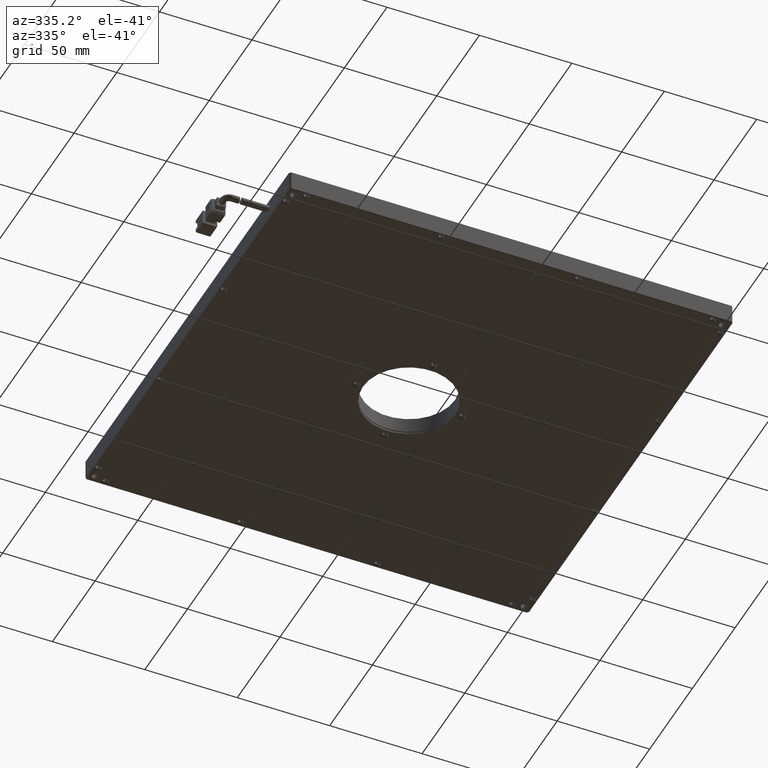
[diagram: clean part render]
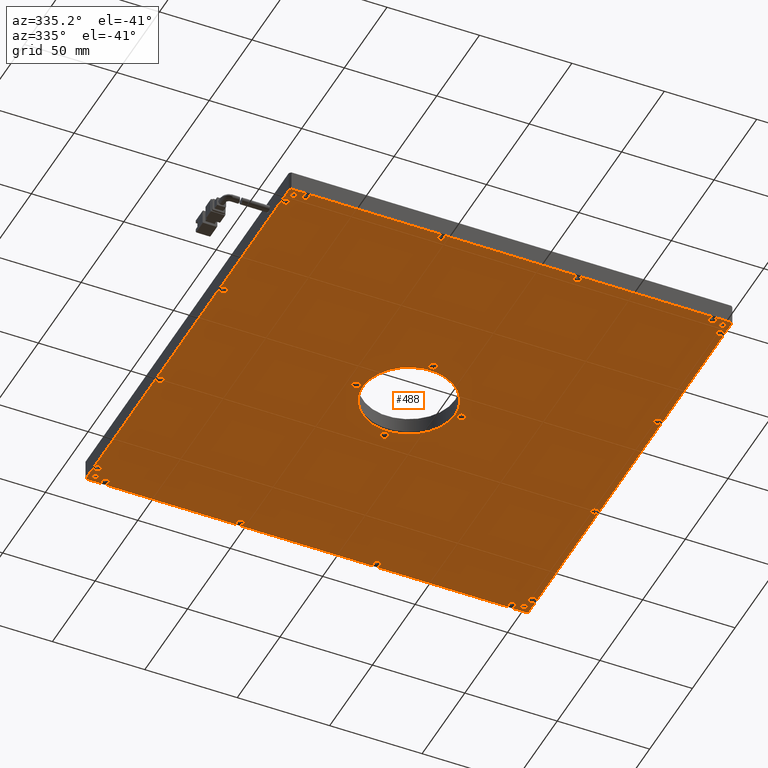
[diagram: same view with one face highlighted and labeled with its STEP entity id]
A machine part, auxiliary view. The second image highlights one B-rep face of the part: STEP entity #488.
In plain terms, the highlighted planar face has unit normal (0, 0, 1).
Its self-contained STEP definition (entity closure, byte-faithful):
#20 = CARTESIAN_POINT ( 'NONE',  ( 103.4453703703703800, -89.45796296301252000, -5.999999999929058500 ) ) ;
#33 = FACE_BOUND ( 'NONE', #13826, .T. ) ;
#67 = CARTESIAN_POINT ( 'NONE',  ( -51.05462962962992200, 134.0420370371026600, -6.000000000042745400 ) ) ;
#76 = CARTESIAN_POINT ( 'NONE',  ( -51.05462962962975800, -98.95796296296295200, -6.000000000042745400 ) ) ;
#153 = CARTESIAN_POINT ( 'NONE',  ( -131.5546296296299400, -18.45796296296279900, -6.000000000042745400 ) ) ;
#185 = CIRCLE ( 'NONE', #16923, 25.00000000000002100 ) ;
#219 = EDGE_CURVE ( 'NONE', #18613, #7248, #18902, .T. ) ;
#300 = DIRECTION ( 'NONE',  ( -1.000000000000000000, 0.0000000000000000000, 0.0000000000000000000 ) ) ;
#302 = LINE ( 'NONE', #7775, #19637 ) ;
#313 = FACE_BOUND ( 'NONE', #20107, .T. ) ;
#315 = AXIS2_PLACEMENT_3D ( 'NONE', #18181, #2802, #1114 ) ;
#325 = CARTESIAN_POINT ( 'NONE',  ( 100.1953703703703100, 134.5420370370373200, -6.000000000000000000 ) ) ;
#334 = DIRECTION ( 'NONE',  ( 0.0000000000000000000, 0.0000000000000000000, -1.000000000000000000 ) ) ;
#353 = EDGE_CURVE ( 'NONE', #2741, #15798, #9625, .T. ) ;
#385 = EDGE_LOOP ( 'NONE', ( #12186, #14098 ) ) ;
#397 = CIRCLE ( 'NONE', #13033, 2.000000000027340800 ) ;
#488 = ADVANCED_FACE ( 'NONE', ( #7473, #15957, #6935, #13823, #313, #15138, #18863, #18319, #7728, #21271, #5597, #3758, #12494, #33, #19119, #9062, #10667, #2702, #1125, #19651, #6132, #20191, #9332, #4801, #18576, #17260 ), #15563, .F. ) ;
#499 = DIRECTION ( 'NONE',  ( 0.0000000000000000000, -1.000000000000000000, 0.0000000000000000000 ) ) ;
#502 = ORIENTED_EDGE ( 'NONE', *, *, #15995, .F. ) ;
#531 = CARTESIAN_POINT ( 'NONE',  ( -39.05462962962982900, 18.54203703703719300, -5.999999999999999100 ) ) ;
#564 = CARTESIAN_POINT ( 'NONE',  ( -133.7546296296300200, -100.3336988942509700, -6.000000000000034600 ) ) ;
#595 = AXIS2_PLACEMENT_3D ( 'NONE', #9376, #2425, #16027 ) ;
#637 = CIRCLE ( 'NONE', #2841, 1.999999999950430300 ) ;
#693 = CARTESIAN_POINT ( 'NONE',  ( -128.3046296296300300, 134.5420370370374900, -6.000000000000000000 ) ) ;
#762 = CARTESIAN_POINT ( 'NONE',  ( -130.0546296296299400, -97.45796296296291000, -6.000000000000000000 ) ) ;
#800 = AXIS2_PLACEMENT_3D ( 'NONE', #10317, #1899, #10248 ) ;
#816 = VERTEX_POINT ( 'NONE', #3018 ) ;
#840 = EDGE_CURVE ( 'NONE', #9935, #7096, #5579, .T. ) ;
#849 = CARTESIAN_POINT ( 'NONE',  ( -132.9303655609180900, 138.2420370370373600, -5.999999999999914700 ) ) ;
#887 = DIRECTION ( 'NONE',  ( 0.0000000000000000000, 0.0000000000000000000, -1.000000000000000000 ) ) ;
#922 = CARTESIAN_POINT ( 'NONE',  ( 105.6453703703703200, -100.3336988942509900, -5.999999999999937800 ) ) ;
#943 = ORIENTED_EDGE ( 'NONE', *, *, #11579, .F. ) ;
#1039 = CARTESIAN_POINT ( 'NONE',  ( -131.5546296296299400, -91.45796296296288100, -6.000000000042745400 ) ) ;
#1041 = CARTESIAN_POINT ( 'NONE',  ( 105.6453703703703700, 138.5420370370373200, -5.999999999999999100 ) ) ;
#1059 = VERTEX_POINT ( 'NONE', #10425 ) ;
#1087 = DIRECTION ( 'NONE',  ( 0.0000000000000000000, 1.084202172543221200E-016, -1.000000000000000000 ) ) ;
#1114 = DIRECTION ( 'NONE',  ( -1.000000000000000000, 0.0000000000000000000, 0.0000000000000000000 ) ) ;
#1117 = CIRCLE ( 'NONE', #12520, 2.200000000020851900 ) ;
#1125 = FACE_BOUND ( 'NONE', #5131, .T. ) ;
#1328 = CARTESIAN_POINT ( 'NONE',  ( -131.5546296296300300, 128.5420370370374900, -6.000000000042745400 ) ) ;
#1343 = VERTEX_POINT ( 'NONE', #6682 ) ;
#1371 = DIRECTION ( 'NONE',  ( -1.000000000000000000, 0.0000000000000000000, 0.0000000000000000000 ) ) ;
#1431 = CARTESIAN_POINT ( 'NONE',  ( 95.94537037037037000, -98.95796296296299500, -5.999999999985901900 ) ) ;
#1507 = AXIS2_PLACEMENT_3D ( 'NONE', #17445, #3919, #499 ) ;
#1571 = EDGE_CURVE ( 'NONE', #8916, #5627, #9545, .T. ) ;
#1623 = CARTESIAN_POINT ( 'NONE',  ( -44.75462962958909000, 18.54203703703721800, -6.000000000030144800 ) ) ;
#1644 = CARTESIAN_POINT ( 'NONE',  ( -14.05462962962950100, -9.957962962962835000, -5.999999999985901900 ) ) ;
#1660 = DIRECTION ( 'NONE',  ( 0.0000000000000000000, 1.084202172543221200E-016, -1.000000000000000000 ) ) ;
#1693 = CARTESIAN_POINT ( 'NONE',  ( 105.6453703703703200, 137.4177729683253200, -5.999999999999988500 ) ) ;
#1732 = CARTESIAN_POINT ( 'NONE',  ( 101.9453703703703800, -97.45796296296299500, -6.000000000000000000 ) ) ;
#1774 = CARTESIAN_POINT ( 'NONE',  ( -14.05462962962991600, 47.04203703703724700, -5.999999999985901900 ) ) ;
#1792 = CIRCLE ( 'NONE', #19094, 2.200000000016189000 ) ;
#1795 = CIRCLE ( 'NONE', #315, 2.000000000007232000 ) ;
#1828 = CARTESIAN_POINT ( 'NONE',  ( -51.05462962962992200, 136.0420370370373200, -6.000000000042745400 ) ) ;
#1868 = ORIENTED_EDGE ( 'NONE', *, *, #5599, .F. ) ;
#1888 = ORIENTED_EDGE ( 'NONE', *, *, #17180, .F. ) ;
#1899 = DIRECTION ( 'NONE',  ( 0.0000000000000000000, 0.0000000000000000000, -1.000000000000000000 ) ) ;
#1914 = CARTESIAN_POINT ( 'NONE',  ( -51.05462962962992200, 136.0420370370373200, -6.000000000042745400 ) ) ;
#1983 = AXIS2_PLACEMENT_3D ( 'NONE', #1774, #13519, #7494 ) ;
#2074 = CIRCLE ( 'NONE', #10865, 2.000000000000376600 ) ;
#2132 = EDGE_CURVE ( 'NONE', #15798, #2741, #16364, .T. ) ;
#2163 = CARTESIAN_POINT ( 'NONE',  ( 22.94537037037018500, 134.0420370370277700, -6.000000000016114200 ) ) ;
#2271 = CARTESIAN_POINT ( 'NONE',  ( -51.05462962962975800, -98.95796296296295200, -6.000000000042745400 ) ) ;
#2306 = ORIENTED_EDGE ( 'NONE', *, *, #2416, .F. ) ;
#2309 = VERTEX_POINT ( 'NONE', #9028 ) ;
#2317 = CARTESIAN_POINT ( 'NONE',  ( -124.0546296296300100, 136.0420370370373200, -6.000000000042745400 ) ) ;
#2367 = VERTEX_POINT ( 'NONE', #10750 ) ;
#2416 = EDGE_CURVE ( 'NONE', #21942, #19966, #7616, .T. ) ;
#2425 = DIRECTION ( 'NONE',  ( 0.0000000000000000000, 0.0000000000000000000, -1.000000000000000000 ) ) ;
#2427 = ORIENTED_EDGE ( 'NONE', *, *, #19443, .F. ) ;
#2441 = CARTESIAN_POINT ( 'NONE',  ( -124.0546296296300100, 136.0420370370373200, -6.000000000042745400 ) ) ;
#2455 = AXIS2_PLACEMENT_3D ( 'NONE', #7882, #21449, #14827 ) ;
#2463 = VERTEX_POINT ( 'NONE', #7529 ) ;
#2514 = EDGE_CURVE ( 'NONE', #8155, #10180, #5735, .T. ) ;
#2600 = VERTEX_POINT ( 'NONE', #17956 ) ;
#2639 = ORIENTED_EDGE ( 'NONE', *, *, #4496, .F. ) ;
#2644 = EDGE_CURVE ( 'NONE', #11174, #14848, #11820, .T. ) ;
#2676 = EDGE_LOOP ( 'NONE', ( #943, #21143, #4979, #3082, #1888, #10007, #17331, #11229 ) ) ;
#2680 = VERTEX_POINT ( 'NONE', #10040 ) ;
#2694 = CARTESIAN_POINT ( 'NONE',  ( 101.4453703703631100, -18.45796296296288500, -5.999999999985901900 ) ) ;
#2702 = FACE_BOUND ( 'NONE', #19192, .T. ) ;
#2716 = ORIENTED_EDGE ( 'NONE', *, *, #7203, .F. ) ;
#2741 = VERTEX_POINT ( 'NONE', #6837 ) ;
#2775 = CIRCLE ( 'NONE', #8203, 2.000000000027424300 ) ;
#2802 = DIRECTION ( 'NONE',  ( 0.0000000000000000000, 0.0000000000000000000, -1.000000000000000000 ) ) ;
#2841 = AXIS2_PLACEMENT_3D ( 'NONE', #11214, #8316, #11095 ) ;
#2922 = AXIS2_PLACEMENT_3D ( 'NONE', #153, #20458, #19020 ) ;
#3018 = CARTESIAN_POINT ( 'NONE',  ( -128.3046296296299400, -97.45796296296291000, -6.000000000000000000 ) ) ;
#3037 = ORIENTED_EDGE ( 'NONE', *, *, #8184, .F. ) ;
#3065 = DIRECTION ( 'NONE',  ( 0.0000000000000000000, -1.000000000000000000, 0.0000000000000000000 ) ) ;
#3082 = ORIENTED_EDGE ( 'NONE', *, *, #17721, .F. ) ;
#3115 = CIRCLE ( 'NONE', #21677, 25.00000000000002100 ) ;
#3118 = EDGE_CURVE ( 'NONE', #18591, #20547, #7818, .T. ) ;
#3122 = DIRECTION ( 'NONE',  ( 0.0000000000000000000, -1.000000000000000000, 0.0000000000000000000 ) ) ;
#3159 = CIRCLE ( 'NONE', #12307, 1.999999999950388600 ) ;
#3225 = VERTEX_POINT ( 'NONE', #19726 ) ;
#3258 = ORIENTED_EDGE ( 'NONE', *, *, #12553, .F. ) ;
#3278 = CIRCLE ( 'NONE', #1507, 2.000000000020513400 ) ;
#3307 = CARTESIAN_POINT ( 'NONE',  ( 104.8211063016584300, -101.1579629629629700, -5.999999999999974200 ) ) ;
#3315 = AXIS2_PLACEMENT_3D ( 'NONE', #76, #13548, #16711 ) ;
#3345 = DIRECTION ( 'NONE',  ( 0.0000000000000000000, -1.000000000000000000, 0.0000000000000000000 ) ) ;
#3401 = DIRECTION ( 'NONE',  ( 7.052966104740302100E-032, 1.084202172470637700E-016, -1.000000000000000000 ) ) ;
#3442 = DIRECTION ( 'NONE',  ( -1.000000000000000000, 0.0000000000000000000, 0.0000000000000000000 ) ) ;
#3448 = CIRCLE ( 'NONE', #2922, 2.000000000020596400 ) ;
#3464 = VERTEX_POINT ( 'NONE', #10430 ) ;
#3479 = DIRECTION ( 'NONE',  ( -0.0000000000000000000, -0.0000000000000000000, -1.000000000000000000 ) ) ;
#3486 = VERTEX_POINT ( 'NONE', #5084 ) ;
#3531 = EDGE_CURVE ( 'NONE', #4529, #3559, #637, .T. ) ;
#3559 = VERTEX_POINT ( 'NONE', #8973 ) ;
#3570 = DIRECTION ( 'NONE',  ( 0.0000000000000000000, 0.0000000000000000000, -1.000000000000000000 ) ) ;
#3623 = CARTESIAN_POINT ( 'NONE',  ( -133.7546296296299300, -100.3336988942509200, -5.999999999999999100 ) ) ;
#3711 = CARTESIAN_POINT ( 'NONE',  ( 22.94537037037018500, 136.0420370370373200, -6.000000000016114200 ) ) ;
#3714 = DIRECTION ( 'NONE',  ( 0.0000000000000000000, 1.084202172474339100E-016, -1.000000000000000000 ) ) ;
#3758 = FACE_BOUND ( 'NONE', #21742, .T. ) ;
#3814 = ORIENTED_EDGE ( 'NONE', *, *, #12352, .F. ) ;
#3872 = DIRECTION ( 'NONE',  ( 1.000000000000000000, 0.0000000000000000000, 0.0000000000000000000 ) ) ;
#3903 = AXIS2_PLACEMENT_3D ( 'NONE', #8794, #13899, #15603 ) ;
#3919 = DIRECTION ( 'NONE',  ( 0.0000000000000000000, 1.084202172474384200E-016, -1.000000000000000000 ) ) ;
#3923 = CARTESIAN_POINT ( 'NONE',  ( 22.94537037037018500, 138.0420370370468700, -6.000000000016114200 ) ) ;
#3930 = CARTESIAN_POINT ( 'NONE',  ( -132.9303655609180300, 138.2420370370374800, -5.999999999999999100 ) ) ;
#4014 = CARTESIAN_POINT ( 'NONE',  ( -124.0546296296300100, 138.0420370370646600, -6.000000000042745400 ) ) ;
#4085 = DIRECTION ( 'NONE',  ( 0.0000000000000000000, 1.084202172465898200E-016, -1.000000000000000000 ) ) ;
#4126 = EDGE_CURVE ( 'NONE', #2600, #5795, #13948, .T. ) ;
#4135 = CARTESIAN_POINT ( 'NONE',  ( 95.94537037037037000, -98.95796296296299500, -5.999999999985901900 ) ) ;
#4157 = DIRECTION ( 'NONE',  ( 0.0000000000000000000, 0.0000000000000000000, -1.000000000000000000 ) ) ;
#4163 = DIRECTION ( 'NONE',  ( 0.0000000000000000000, -1.000000000000000000, 0.0000000000000000000 ) ) ;
#4194 = ORIENTED_EDGE ( 'NONE', *, *, #2132, .F. ) ;
#4302 = EDGE_LOOP ( 'NONE', ( #15633, #10788 ) ) ;
#4305 = EDGE_LOOP ( 'NONE', ( #11524, #7522 ) ) ;
#4392 = EDGE_CURVE ( 'NONE', #4725, #20127, #8063, .T. ) ;
#4463 = EDGE_CURVE ( 'NONE', #14848, #11174, #12301, .T. ) ;
#4476 = DIRECTION ( 'NONE',  ( 0.0000000000000000000, 1.084202172474339100E-016, -1.000000000000000000 ) ) ;
#4496 = EDGE_CURVE ( 'NONE', #5795, #2600, #18917, .T. ) ;
#4515 = EDGE_CURVE ( 'NONE', #2309, #12538, #13080, .T. ) ;
#4529 = VERTEX_POINT ( 'NONE', #20 ) ;
#4549 = ORIENTED_EDGE ( 'NONE', *, *, #16992, .F. ) ;
#4583 = EDGE_CURVE ( 'NONE', #13890, #2680, #17300, .T. ) ;
#4725 = VERTEX_POINT ( 'NONE', #8373 ) ;
#4750 = VERTEX_POINT ( 'NONE', #15826 ) ;
#4755 = CARTESIAN_POINT ( 'NONE',  ( 103.4453703703703000, 128.5420370370373200, -5.999999999985901900 ) ) ;
#4801 = FACE_BOUND ( 'NONE', #13296, .T. ) ;
#4829 = CIRCLE ( 'NONE', #18525, 1.749999999999987600 ) ;
#4848 = ORIENTED_EDGE ( 'NONE', *, *, #17620, .F. ) ;
#4852 = VERTEX_POINT ( 'NONE', #564 ) ;
#4913 = DIRECTION ( 'NONE',  ( 1.000000000000000000, 0.0000000000000000000, 0.0000000000000000000 ) ) ;
#4979 = ORIENTED_EDGE ( 'NONE', *, *, #10339, .F. ) ;
#5005 = CARTESIAN_POINT ( 'NONE',  ( -42.55462962962974400, 18.54203703703721800, -6.000000000030144800 ) ) ;
#5030 = VECTOR ( 'NONE', #11167, 1000.000000000000000 ) ;
#5051 = CARTESIAN_POINT ( 'NONE',  ( 95.94537037037031300, 136.0420370370373200, -5.999999999985901900 ) ) ;
#5066 = CARTESIAN_POINT ( 'NONE',  ( 105.6453703703703000, 137.4177729683253500, -5.999999999999999100 ) ) ;
#5080 = DIRECTION ( 'NONE',  ( 0.0000000000000000000, -1.000000000000000000, 0.0000000000000000000 ) ) ;
#5084 = CARTESIAN_POINT ( 'NONE',  ( -14.05462962962950100, -7.757962962941983100, -5.999999999985901900 ) ) ;
#5131 = EDGE_LOOP ( 'NONE', ( #502, #13252 ) ) ;
#5178 = DIRECTION ( 'NONE',  ( 0.0000000000000000000, -1.000000000000000000, 0.0000000000000000000 ) ) ;
#5256 = DIRECTION ( 'NONE',  ( 0.0000000000000000000, 0.0000000000000000000, -1.000000000000000000 ) ) ;
#5264 = CARTESIAN_POINT ( 'NONE',  ( 101.9453703703703800, -97.45796296296299500, -6.000000000000000000 ) ) ;
#5353 = DIRECTION ( 'NONE',  ( 0.0000000000000000000, -1.000000000000000000, 0.0000000000000000000 ) ) ;
#5443 = VERTEX_POINT ( 'NONE', #693 ) ;
#5483 = CIRCLE ( 'NONE', #10576, 2.000000000020596400 ) ;
#5518 = DIRECTION ( 'NONE',  ( 0.0000000000000000000, 1.084202172543191000E-016, -1.000000000000000000 ) ) ;
#5553 = CARTESIAN_POINT ( 'NONE',  ( -14.05462962962980600, 18.54203703703719000, -5.999999999999999100 ) ) ;
#5579 = LINE ( 'NONE', #1041, #5030 ) ;
#5597 = FACE_BOUND ( 'NONE', #17691, .T. ) ;
#5599 = EDGE_CURVE ( 'NONE', #13317, #3486, #15659, .T. ) ;
#5600 = ORIENTED_EDGE ( 'NONE', *, *, #6998, .F. ) ;
#5627 = VERTEX_POINT ( 'NONE', #13473 ) ;
#5647 = EDGE_LOOP ( 'NONE', ( #3258, #2306 ) ) ;
#5735 = CIRCLE ( 'NONE', #19827, 2.000000000020513400 ) ;
#5795 = VERTEX_POINT ( 'NONE', #67 ) ;
#5903 = DIRECTION ( 'NONE',  ( 0.0000000000000000000, 1.084202172470682700E-016, -1.000000000000000000 ) ) ;
#5995 = CIRCLE ( 'NONE', #12671, 2.200000000016189000 ) ;
#6132 = FACE_BOUND ( 'NONE', #385, .T. ) ;
#6134 = VERTEX_POINT ( 'NONE', #13868 ) ;
#6180 = ORIENTED_EDGE ( 'NONE', *, *, #6601, .F. ) ;
#6213 = CIRCLE ( 'NONE', #19589, 2.000000000020596400 ) ;
#6236 = EDGE_CURVE ( 'NONE', #18300, #1059, #7101, .T. ) ;
#6240 = CARTESIAN_POINT ( 'NONE',  ( 101.4453703703631100, 128.5420370370373200, -5.999999999985901900 ) ) ;
#6403 = AXIS2_PLACEMENT_3D ( 'NONE', #18067, #18364, #9941 ) ;
#6461 = EDGE_CURVE ( 'NONE', #5443, #17082, #11587, .T. ) ;
#6536 = DIRECTION ( 'NONE',  ( 0.0000000000000000000, 0.0000000000000000000, -1.000000000000000000 ) ) ;
#6601 = EDGE_CURVE ( 'NONE', #816, #16690, #16053, .T. ) ;
#6682 = CARTESIAN_POINT ( 'NONE',  ( -133.7546296296299600, 137.4177729683254700, -5.999999999999941400 ) ) ;
#6711 = LINE ( 'NONE', #16494, #14948 ) ;
#6724 = CARTESIAN_POINT ( 'NONE',  ( 22.94537037037027000, -98.95796296296295200, -6.000000000016030700 ) ) ;
#6727 = DIRECTION ( 'NONE',  ( 0.0000000000000000000, 9.856383385883771500E-017, -1.000000000000000000 ) ) ;
#6739 = CARTESIAN_POINT ( 'NONE',  ( 100.1953703703704000, -97.45796296296299500, -6.000000000000000000 ) ) ;
#6785 = AXIS2_PLACEMENT_3D ( 'NONE', #13057, #9795, #3065 ) ;
#6837 = CARTESIAN_POINT ( 'NONE',  ( -40.35462962967039900, 18.54203703703721800, -6.000000000030144800 ) ) ;
#6935 = FACE_BOUND ( 'NONE', #4302, .T. ) ;
#6989 = CIRCLE ( 'NONE', #9985, 1.750000000000001600 ) ;
#6998 = EDGE_CURVE ( 'NONE', #3225, #8278, #10894, .T. ) ;
#7096 = VERTEX_POINT ( 'NONE', #1693 ) ;
#7101 = CIRCLE ( 'NONE', #8217, 1.999999999934831700 ) ;
#7104 = DIRECTION ( 'NONE',  ( 0.0000000000000000000, 1.084202172465898200E-016, -1.000000000000000000 ) ) ;
#7138 = AXIS2_PLACEMENT_3D ( 'NONE', #13596, #19067, #18704 ) ;
#7203 = EDGE_CURVE ( 'NONE', #17082, #5443, #18017, .T. ) ;
#7214 = EDGE_LOOP ( 'NONE', ( #15134, #12518 ) ) ;
#7215 = CARTESIAN_POINT ( 'NONE',  ( 103.4453703703703800, -91.45796296296295200, -5.999999999929058500 ) ) ;
#7248 = VERTEX_POINT ( 'NONE', #849 ) ;
#7395 = CARTESIAN_POINT ( 'NONE',  ( -14.05462962962980600, 18.54203703703719000, -5.999999999999999100 ) ) ;
#7473 = FACE_BOUND ( 'NONE', #20002, .T. ) ;
#7476 = CARTESIAN_POINT ( 'NONE',  ( 22.94537037037018500, 136.0420370370373200, -6.000000000016114200 ) ) ;
#7494 = DIRECTION ( 'NONE',  ( 0.0000000000000000000, -1.000000000000000000, 0.0000000000000000000 ) ) ;
#7511 = CARTESIAN_POINT ( 'NONE',  ( -133.7546296296300200, 138.5420370370373200, -5.999999999999999100 ) ) ;
#7522 = ORIENTED_EDGE ( 'NONE', *, *, #12210, .F. ) ;
#7529 = CARTESIAN_POINT ( 'NONE',  ( 103.4453703703703400, 57.54203703698753000, -5.999999999929058500 ) ) ;
#7540 = DIRECTION ( 'NONE',  ( -0.7071067811865713300, -0.7071067811865237000, 0.0000000000000000000 ) ) ;
#7557 = DIRECTION ( 'NONE',  ( -1.000000000000000000, 0.0000000000000000000, 0.0000000000000000000 ) ) ;
#7616 = CIRCLE ( 'NONE', #15585, 2.000000000000445900 ) ;
#7631 = AXIS2_PLACEMENT_3D ( 'NONE', #4755, #6536, #15133 ) ;
#7643 = ORIENTED_EDGE ( 'NONE', *, *, #18462, .F. ) ;
#7653 = CARTESIAN_POINT ( 'NONE',  ( -124.0546296296299300, -96.95796296293549700, -6.000000000042745400 ) ) ;
#7699 = VERTEX_POINT ( 'NONE', #15546 ) ;
#7728 = FACE_BOUND ( 'NONE', #15918, .T. ) ;
#7756 = ORIENTED_EDGE ( 'NONE', *, *, #4392, .F. ) ;
#7775 = CARTESIAN_POINT ( 'NONE',  ( 104.8211063016584200, -101.1579629629630100, -5.999999999999999100 ) ) ;
#7818 = CIRCLE ( 'NONE', #6785, 2.000000000009549700 ) ;
#7822 = EDGE_LOOP ( 'NONE', ( #13041, #16225 ) ) ;
#7853 = CIRCLE ( 'NONE', #10846, 1.999999999950430300 ) ;
#7882 = CARTESIAN_POINT ( 'NONE',  ( 101.9453703703703000, 134.5420370370373200, -6.000000000000000000 ) ) ;
#8015 = CIRCLE ( 'NONE', #11179, 2.000000000009549700 ) ;
#8021 = EDGE_CURVE ( 'NONE', #8615, #17747, #1795, .T. ) ;
#8063 = CIRCLE ( 'NONE', #15258, 1.749999999999987600 ) ;
#8071 = ORIENTED_EDGE ( 'NONE', *, *, #2514, .F. ) ;
#8074 = CARTESIAN_POINT ( 'NONE',  ( -51.05462962962975800, -96.95796296302812300, -6.000000000042745400 ) ) ;
#8077 = CARTESIAN_POINT ( 'NONE',  ( -130.0546296296300300, 134.5420370370374900, -6.000000000000000000 ) ) ;
#8155 = VERTEX_POINT ( 'NONE', #12189 ) ;
#8184 = EDGE_CURVE ( 'NONE', #3559, #4529, #7853, .T. ) ;
#8203 = AXIS2_PLACEMENT_3D ( 'NONE', #20147, #20379, #18647 ) ;
#8204 = EDGE_CURVE ( 'NONE', #10062, #7699, #5995, .T. ) ;
#8217 = AXIS2_PLACEMENT_3D ( 'NONE', #2271, #9351, #4163 ) ;
#8278 = VERTEX_POINT ( 'NONE', #14331 ) ;
#8303 = CIRCLE ( 'NONE', #3903, 2.000000000007232000 ) ;
#8316 = DIRECTION ( 'NONE',  ( 0.0000000000000000000, 1.084202172543191000E-016, -1.000000000000000000 ) ) ;
#8373 = CARTESIAN_POINT ( 'NONE',  ( 103.6953703703702800, 134.5420370370373200, -6.000000000000000000 ) ) ;
#8491 = CARTESIAN_POINT ( 'NONE',  ( -14.05462962962950100, -12.15796296298368700, -5.999999999985901900 ) ) ;
#8574 = DIRECTION ( 'NONE',  ( 0.0000000000000000000, 1.084202172520922600E-016, -1.000000000000000000 ) ) ;
#8615 = VERTEX_POINT ( 'NONE', #11423 ) ;
#8651 = VECTOR ( 'NONE', #10359, 1000.000000000000100 ) ;
#8753 = CARTESIAN_POINT ( 'NONE',  ( -131.5546296296299400, -91.45796296296288100, -6.000000000042745400 ) ) ;
#8794 = CARTESIAN_POINT ( 'NONE',  ( 103.4453703703703400, -18.45796296296288500, -5.999999999985901900 ) ) ;
#8827 = ORIENTED_EDGE ( 'NONE', *, *, #19699, .F. ) ;
#8837 = AXIS2_PLACEMENT_3D ( 'NONE', #18473, #16753, #11744 ) ;
#8881 = AXIS2_PLACEMENT_3D ( 'NONE', #1914, #8574, #10335 ) ;
#8916 = VERTEX_POINT ( 'NONE', #4014 ) ;
#8973 = CARTESIAN_POINT ( 'NONE',  ( 103.4453703703703800, -93.45796296291338500, -5.999999999929058500 ) ) ;
#9003 = EDGE_CURVE ( 'NONE', #16690, #816, #6989, .T. ) ;
#9027 = EDGE_CURVE ( 'NONE', #9136, #19089, #6711, .T. ) ;
#9028 = CARTESIAN_POINT ( 'NONE',  ( -131.5546296296300300, 53.54203703701679000, -6.000000000042745400 ) ) ;
#9062 = FACE_BOUND ( 'NONE', #14005, .T. ) ;
#9136 = VERTEX_POINT ( 'NONE', #9419 ) ;
#9198 = CARTESIAN_POINT ( 'NONE',  ( 105.9453703703703000, 138.5420370370373200, -5.999999999999999100 ) ) ;
#9332 = FACE_OUTER_BOUND ( 'NONE', #2676, .T. ) ;
#9342 = DIRECTION ( 'NONE',  ( 0.0000000000000000000, 0.0000000000000000000, 1.000000000000000000 ) ) ;
#9351 = DIRECTION ( 'NONE',  ( 7.052966105393354200E-032, 1.084202172520832200E-016, -1.000000000000000000 ) ) ;
#9376 = CARTESIAN_POINT ( 'NONE',  ( 95.94537037037031300, 136.0420370370373200, -5.999999999985901900 ) ) ;
#9419 = CARTESIAN_POINT ( 'NONE',  ( -132.9303655609179800, -101.1579629629629600, -6.000000000000007100 ) ) ;
#9449 = EDGE_CURVE ( 'NONE', #12538, #2309, #3278, .T. ) ;
#9529 = ORIENTED_EDGE ( 'NONE', *, *, #4126, .F. ) ;
#9545 = CIRCLE ( 'NONE', #20220, 2.000000000027340800 ) ;
#9588 = DIRECTION ( 'NONE',  ( 0.0000000000000000000, 1.084202172470682700E-016, -1.000000000000000000 ) ) ;
#9591 = ORIENTED_EDGE ( 'NONE', *, *, #20137, .F. ) ;
#9625 = CIRCLE ( 'NONE', #18608, 2.199999999959345600 ) ;
#9673 = AXIS2_PLACEMENT_3D ( 'NONE', #15161, #3401, #5080 ) ;
#9702 = EDGE_CURVE ( 'NONE', #7096, #18613, #15272, .T. ) ;
#9711 = DIRECTION ( 'NONE',  ( -1.000000000000000000, 0.0000000000000000000, 0.0000000000000000000 ) ) ;
#9733 = VERTEX_POINT ( 'NONE', #19754 ) ;
#9795 = DIRECTION ( 'NONE',  ( 2.350988701559318300E-032, 1.084202172465845800E-016, -1.000000000000000000 ) ) ;
#9807 = CARTESIAN_POINT ( 'NONE',  ( 101.9453703703703000, 134.5420370370373200, -6.000000000000000000 ) ) ;
#9884 = DIRECTION ( 'NONE',  ( 0.0000000000000000000, 0.0000000000000000000, -1.000000000000000000 ) ) ;
#9888 = CIRCLE ( 'NONE', #16272, 2.000000000009549700 ) ;
#9912 = ORIENTED_EDGE ( 'NONE', *, *, #3118, .F. ) ;
#9931 = DIRECTION ( 'NONE',  ( 0.0000000000000000000, 0.0000000000000000000, -1.000000000000000000 ) ) ;
#9935 = VERTEX_POINT ( 'NONE', #922 ) ;
#9941 = DIRECTION ( 'NONE',  ( 0.0000000000000000000, -1.000000000000000000, 0.0000000000000000000 ) ) ;
#9985 = AXIS2_PLACEMENT_3D ( 'NONE', #762, #4157, #7557 ) ;
#10007 = ORIENTED_EDGE ( 'NONE', *, *, #219, .F. ) ;
#10018 = CIRCLE ( 'NONE', #1983, 2.200000000020435400 ) ;
#10040 = CARTESIAN_POINT ( 'NONE',  ( 103.6953703703703700, -97.45796296296299500, -6.000000000000000000 ) ) ;
#10062 = VERTEX_POINT ( 'NONE', #11545 ) ;
#10142 = DIRECTION ( 'NONE',  ( -1.000000000000000000, 0.0000000000000000000, 0.0000000000000000000 ) ) ;
#10179 = DIRECTION ( 'NONE',  ( 0.0000000000000000000, 1.084202172520922600E-016, -1.000000000000000000 ) ) ;
#10180 = VERTEX_POINT ( 'NONE', #16925 ) ;
#10248 = DIRECTION ( 'NONE',  ( -1.000000000000000000, 0.0000000000000000000, 0.0000000000000000000 ) ) ;
#10262 = DIRECTION ( 'NONE',  ( -1.000000000000000000, 0.0000000000000000000, 0.0000000000000000000 ) ) ;
#10292 = DIRECTION ( 'NONE',  ( -1.000000000000000000, 0.0000000000000000000, 0.0000000000000000000 ) ) ;
#10310 = VECTOR ( 'NONE', #7540, 1000.000000000000000 ) ;
#10317 = CARTESIAN_POINT ( 'NONE',  ( 103.4453703703703000, 128.5420370370373200, -5.999999999985901900 ) ) ;
#10335 = DIRECTION ( 'NONE',  ( 0.0000000000000000000, -1.000000000000000000, 0.0000000000000000000 ) ) ;
#10339 = EDGE_CURVE ( 'NONE', #4852, #9136, #13135, .T. ) ;
#10347 = DIRECTION ( 'NONE',  ( 0.0000000000000000000, 1.084202172474339100E-016, -1.000000000000000000 ) ) ;
#10359 = DIRECTION ( 'NONE',  ( 0.7071067811865474600, -0.7071067811865474600, -0.0000000000000000000 ) ) ;
#10386 = VERTEX_POINT ( 'NONE', #2163 ) ;
#10391 = VERTEX_POINT ( 'NONE', #13991 ) ;
#10408 = VERTEX_POINT ( 'NONE', #3923 ) ;
#10425 = CARTESIAN_POINT ( 'NONE',  ( -51.05462962962975800, -100.9579629628977800, -6.000000000042745400 ) ) ;
#10430 = CARTESIAN_POINT ( 'NONE',  ( -14.05462962962991600, 44.84203703701680900, -5.999999999985901900 ) ) ;
#10478 = CARTESIAN_POINT ( 'NONE',  ( -131.5546296296300300, 55.54203703703730400, -6.000000000042745400 ) ) ;
#10559 = AXIS2_PLACEMENT_3D ( 'NONE', #9198, #9342, #12658 ) ;
#10576 = AXIS2_PLACEMENT_3D ( 'NONE', #8753, #3714, #15335 ) ;
#10587 = ORIENTED_EDGE ( 'NONE', *, *, #18422, .F. ) ;
#10667 = FACE_BOUND ( 'NONE', #5647, .T. ) ;
#10750 = CARTESIAN_POINT ( 'NONE',  ( -14.05462962962991600, 49.24203703705767800, -5.999999999985901900 ) ) ;
#10788 = ORIENTED_EDGE ( 'NONE', *, *, #21440, .F. ) ;
#10804 = VECTOR ( 'NONE', #18706, 1000.000000000000000 ) ;
#10839 = EDGE_LOOP ( 'NONE', ( #4194, #19021 ) ) ;
#10846 = AXIS2_PLACEMENT_3D ( 'NONE', #7215, #5518, #17357 ) ;
#10865 = AXIS2_PLACEMENT_3D ( 'NONE', #5051, #20416, #3442 ) ;
#10894 = CIRCLE ( 'NONE', #14897, 2.000000000020596400 ) ;
#11095 = DIRECTION ( 'NONE',  ( 0.0000000000000000000, -1.000000000000000000, 0.0000000000000000000 ) ) ;
#11167 = DIRECTION ( 'NONE',  ( 0.0000000000000000000, 1.000000000000000000, 0.0000000000000000000 ) ) ;
#11170 = EDGE_CURVE ( 'NONE', #9733, #2463, #17012, .T. ) ;
#11171 = CIRCLE ( 'NONE', #3315, 1.999999999934831700 ) ;
#11174 = VERTEX_POINT ( 'NONE', #6240 ) ;
#11179 = AXIS2_PLACEMENT_3D ( 'NONE', #7476, #4085, #15921 ) ;
#11214 = CARTESIAN_POINT ( 'NONE',  ( 103.4453703703703800, -91.45796296296295200, -5.999999999929058500 ) ) ;
#11219 = CARTESIAN_POINT ( 'NONE',  ( 103.4453703703703400, 55.54203703703714000, -5.999999999929058500 ) ) ;
#11229 = ORIENTED_EDGE ( 'NONE', *, *, #840, .F. ) ;
#11337 = CARTESIAN_POINT ( 'NONE',  ( -131.5546296296300300, 57.54203703705781700, -6.000000000042745400 ) ) ;
#11423 = CARTESIAN_POINT ( 'NONE',  ( 105.4453703703775700, -18.45796296296288500, -5.999999999985901900 ) ) ;
#11440 = CARTESIAN_POINT ( 'NONE',  ( -124.0546296296299300, -100.9579629629903400, -6.000000000042745400 ) ) ;
#11506 = DIRECTION ( 'NONE',  ( 0.0000000000000000000, -1.000000000000000000, 0.0000000000000000000 ) ) ;
#11524 = ORIENTED_EDGE ( 'NONE', *, *, #11170, .F. ) ;
#11545 = CARTESIAN_POINT ( 'NONE',  ( 12.24537037035403100, 18.54203703703720400, -5.999999999932860800 ) ) ;
#11579 = EDGE_CURVE ( 'NONE', #19089, #9935, #302, .T. ) ;
#11587 = CIRCLE ( 'NONE', #12047, 1.750000000000001600 ) ;
#11744 = DIRECTION ( 'NONE',  ( 0.0000000000000000000, -1.000000000000000000, 0.0000000000000000000 ) ) ;
#11754 = ORIENTED_EDGE ( 'NONE', *, *, #4515, .F. ) ;
#11820 = CIRCLE ( 'NONE', #7631, 2.000000000007190700 ) ;
#12043 = CARTESIAN_POINT ( 'NONE',  ( 14.44537037037022000, 18.54203703703720400, -5.999999999932860800 ) ) ;
#12047 = AXIS2_PLACEMENT_3D ( 'NONE', #8077, #9931, #9711 ) ;
#12077 = EDGE_LOOP ( 'NONE', ( #3814, #19592 ) ) ;
#12149 = AXIS2_PLACEMENT_3D ( 'NONE', #1828, #10179, #5353 ) ;
#12186 = ORIENTED_EDGE ( 'NONE', *, *, #2644, .F. ) ;
#12189 = CARTESIAN_POINT ( 'NONE',  ( -131.5546296296300300, 126.5420370370169700, -6.000000000042745400 ) ) ;
#12210 = EDGE_CURVE ( 'NONE', #2463, #9733, #3159, .T. ) ;
#12288 = VECTOR ( 'NONE', #21592, 1000.000000000000000 ) ;
#12301 = CIRCLE ( 'NONE', #800, 2.000000000007190700 ) ;
#12307 = AXIS2_PLACEMENT_3D ( 'NONE', #13412, #1660, #17256 ) ;
#12310 = DIRECTION ( 'NONE',  ( -0.0000000000000000000, -0.0000000000000000000, -1.000000000000000000 ) ) ;
#12352 = EDGE_CURVE ( 'NONE', #3464, #2367, #10018, .T. ) ;
#12441 = AXIS2_PLACEMENT_3D ( 'NONE', #5005, #20218, #10142 ) ;
#12494 = FACE_BOUND ( 'NONE', #20483, .T. ) ;
#12518 = ORIENTED_EDGE ( 'NONE', *, *, #21390, .F. ) ;
#12520 = AXIS2_PLACEMENT_3D ( 'NONE', #20324, #16864, #3345 ) ;
#12538 = VERTEX_POINT ( 'NONE', #11337 ) ;
#12549 = VERTEX_POINT ( 'NONE', #19622 ) ;
#12553 = EDGE_CURVE ( 'NONE', #19966, #21942, #19282, .T. ) ;
#12658 = DIRECTION ( 'NONE',  ( 1.000000000000000000, 0.0000000000000000000, 0.0000000000000000000 ) ) ;
#12671 = AXIS2_PLACEMENT_3D ( 'NONE', #12043, #334, #10262 ) ;
#12729 = CARTESIAN_POINT ( 'NONE',  ( 93.94537037036992900, -98.95796296296299500, -5.999999999985901900 ) ) ;
#12812 = ORIENTED_EDGE ( 'NONE', *, *, #18690, .F. ) ;
#12852 = DIRECTION ( 'NONE',  ( 0.0000000000000000000, 1.084202172474384200E-016, -1.000000000000000000 ) ) ;
#13033 = AXIS2_PLACEMENT_3D ( 'NONE', #2317, #5903, #14066 ) ;
#13041 = ORIENTED_EDGE ( 'NONE', *, *, #15278, .F. ) ;
#13057 = CARTESIAN_POINT ( 'NONE',  ( 22.94537037037027000, -98.95796296296295200, -6.000000000016030700 ) ) ;
#13080 = CIRCLE ( 'NONE', #17086, 2.000000000020513400 ) ;
#13095 = VERTEX_POINT ( 'NONE', #11440 ) ;
#13106 = DIRECTION ( 'NONE',  ( 0.0000000000000000000, 0.0000000000000000000, -1.000000000000000000 ) ) ;
#13135 = LINE ( 'NONE', #3623, #8651 ) ;
#13212 = CIRCLE ( 'NONE', #595, 2.000000000000376600 ) ;
#13219 = EDGE_LOOP ( 'NONE', ( #13664, #9591 ) ) ;
#13252 = ORIENTED_EDGE ( 'NONE', *, *, #8021, .F. ) ;
#13296 = EDGE_LOOP ( 'NONE', ( #14658, #18535 ) ) ;
#13317 = VERTEX_POINT ( 'NONE', #8491 ) ;
#13404 = DIRECTION ( 'NONE',  ( 0.0000000000000000000, 0.0000000000000000000, -1.000000000000000000 ) ) ;
#13412 = CARTESIAN_POINT ( 'NONE',  ( 103.4453703703703400, 55.54203703703714000, -5.999999999929058500 ) ) ;
#13473 = CARTESIAN_POINT ( 'NONE',  ( -124.0546296296300100, 134.0420370370099800, -6.000000000042745400 ) ) ;
#13481 = ORIENTED_EDGE ( 'NONE', *, *, #14316, .F. ) ;
#13519 = DIRECTION ( 'NONE',  ( 0.0000000000000000000, 9.856383385885635200E-017, -1.000000000000000000 ) ) ;
#13548 = DIRECTION ( 'NONE',  ( 7.052966105393354200E-032, 1.084202172520832200E-016, -1.000000000000000000 ) ) ;
#13574 = DIRECTION ( 'NONE',  ( 0.0000000000000000000, 1.084202172474384200E-016, -1.000000000000000000 ) ) ;
#13594 = AXIS2_PLACEMENT_3D ( 'NONE', #1431, #13106, #16495 ) ;
#13596 = CARTESIAN_POINT ( 'NONE',  ( -130.0546296296300300, 134.5420370370374900, -6.000000000000000000 ) ) ;
#13664 = ORIENTED_EDGE ( 'NONE', *, *, #19283, .F. ) ;
#13693 = CARTESIAN_POINT ( 'NONE',  ( 22.94537037037027000, -96.95796296295340300, -6.000000000016030700 ) ) ;
#13753 = CARTESIAN_POINT ( 'NONE',  ( -131.5546296296299400, -18.45796296296279900, -6.000000000042745400 ) ) ;
#13823 = FACE_BOUND ( 'NONE', #14365, .T. ) ;
#13826 = EDGE_LOOP ( 'NONE', ( #10587, #13481 ) ) ;
#13868 = CARTESIAN_POINT ( 'NONE',  ( 93.94537037036992900, 136.0420370370373200, -5.999999999985901900 ) ) ;
#13890 = VERTEX_POINT ( 'NONE', #6739 ) ;
#13899 = DIRECTION ( 'NONE',  ( 0.0000000000000000000, 0.0000000000000000000, -1.000000000000000000 ) ) ;
#13948 = CIRCLE ( 'NONE', #8881, 1.999999999934665200 ) ;
#13991 = CARTESIAN_POINT ( 'NONE',  ( -131.5546296296299400, -20.45796296298339800, -6.000000000042745400 ) ) ;
#14005 = EDGE_LOOP ( 'NONE', ( #7643, #9912 ) ) ;
#14066 = DIRECTION ( 'NONE',  ( 0.0000000000000000000, -1.000000000000000000, 0.0000000000000000000 ) ) ;
#14098 = ORIENTED_EDGE ( 'NONE', *, *, #4463, .F. ) ;
#14106 = DIRECTION ( 'NONE',  ( 0.0000000000000000000, 0.0000000000000000000, -1.000000000000000000 ) ) ;
#14230 = VECTOR ( 'NONE', #16093, 1000.000000000000000 ) ;
#14298 = VERTEX_POINT ( 'NONE', #19763 ) ;
#14316 = EDGE_CURVE ( 'NONE', #20214, #13095, #14453, .T. ) ;
#14331 = CARTESIAN_POINT ( 'NONE',  ( -131.5546296296299400, -89.45796296294229000, -6.000000000042745400 ) ) ;
#14365 = EDGE_LOOP ( 'NONE', ( #21788, #6180 ) ) ;
#14427 = AXIS2_PLACEMENT_3D ( 'NONE', #1732, #5256, #10292 ) ;
#14453 = CIRCLE ( 'NONE', #9673, 2.000000000027424300 ) ;
#14467 = EDGE_CURVE ( 'NONE', #10391, #14298, #6213, .T. ) ;
#14558 = ORIENTED_EDGE ( 'NONE', *, *, #15147, .F. ) ;
#14658 = ORIENTED_EDGE ( 'NONE', *, *, #19790, .F. ) ;
#14743 = EDGE_CURVE ( 'NONE', #2367, #3464, #21824, .T. ) ;
#14827 = DIRECTION ( 'NONE',  ( -1.000000000000000000, 0.0000000000000000000, 0.0000000000000000000 ) ) ;
#14848 = VERTEX_POINT ( 'NONE', #21905 ) ;
#14897 = AXIS2_PLACEMENT_3D ( 'NONE', #1039, #4476, #16345 ) ;
#14915 = AXIS2_PLACEMENT_3D ( 'NONE', #11219, #1087, #16520 ) ;
#14948 = VECTOR ( 'NONE', #21418, 1000.000000000000000 ) ;
#14960 = VERTEX_POINT ( 'NONE', #531 ) ;
#15114 = ORIENTED_EDGE ( 'NONE', *, *, #14467, .F. ) ;
#15133 = DIRECTION ( 'NONE',  ( -1.000000000000000000, 0.0000000000000000000, 0.0000000000000000000 ) ) ;
#15134 = ORIENTED_EDGE ( 'NONE', *, *, #21594, .F. ) ;
#15138 = FACE_BOUND ( 'NONE', #13219, .T. ) ;
#15143 = ORIENTED_EDGE ( 'NONE', *, *, #3531, .F. ) ;
#15147 = EDGE_CURVE ( 'NONE', #10180, #8155, #15414, .T. ) ;
#15161 = CARTESIAN_POINT ( 'NONE',  ( -124.0546296296299300, -98.95796296296291000, -6.000000000042745400 ) ) ;
#15240 = EDGE_CURVE ( 'NONE', #3486, #13317, #1117, .T. ) ;
#15251 = DIRECTION ( 'NONE',  ( -1.000000000000000000, 0.0000000000000000000, 0.0000000000000000000 ) ) ;
#15258 = AXIS2_PLACEMENT_3D ( 'NONE', #9807, #9884, #21669 ) ;
#15272 = LINE ( 'NONE', #5066, #10804 ) ;
#15276 = DIRECTION ( 'NONE',  ( 0.0000000000000000000, -1.000000000000000000, 0.0000000000000000000 ) ) ;
#15278 = EDGE_CURVE ( 'NONE', #1059, #18300, #11171, .T. ) ;
#15335 = DIRECTION ( 'NONE',  ( 0.0000000000000000000, -1.000000000000000000, 0.0000000000000000000 ) ) ;
#15339 = LINE ( 'NONE', #3930, #10310 ) ;
#15414 = CIRCLE ( 'NONE', #6403, 2.000000000020513400 ) ;
#15527 = CARTESIAN_POINT ( 'NONE',  ( 22.94537037037027000, -100.9579629629725000, -6.000000000016030700 ) ) ;
#15546 = CARTESIAN_POINT ( 'NONE',  ( 16.64537037038640900, 18.54203703703720400, -5.999999999932860800 ) ) ;
#15559 = LINE ( 'NONE', #7511, #14230 ) ;
#15563 = PLANE ( 'NONE',  #10559 ) ;
#15585 = AXIS2_PLACEMENT_3D ( 'NONE', #4135, #887, #19595 ) ;
#15603 = DIRECTION ( 'NONE',  ( -1.000000000000000000, 0.0000000000000000000, 0.0000000000000000000 ) ) ;
#15633 = ORIENTED_EDGE ( 'NONE', *, *, #4583, .F. ) ;
#15659 = CIRCLE ( 'NONE', #17251, 2.200000000020851900 ) ;
#15663 = DIRECTION ( 'NONE',  ( -1.000000000000000000, 0.0000000000000000000, 0.0000000000000000000 ) ) ;
#15696 = CARTESIAN_POINT ( 'NONE',  ( 104.8211063016583200, 138.2420370370373600, -5.999999999999977800 ) ) ;
#15798 = VERTEX_POINT ( 'NONE', #1623 ) ;
#15826 = CARTESIAN_POINT ( 'NONE',  ( 10.94537037037021700, 18.54203703703719000, -5.999999999999999100 ) ) ;
#15860 = CIRCLE ( 'NONE', #2455, 1.749999999999987600 ) ;
#15918 = EDGE_LOOP ( 'NONE', ( #12812, #19235 ) ) ;
#15921 = DIRECTION ( 'NONE',  ( 0.0000000000000000000, -1.000000000000000000, 0.0000000000000000000 ) ) ;
#15957 = FACE_BOUND ( 'NONE', #12077, .T. ) ;
#15995 = EDGE_CURVE ( 'NONE', #17747, #8615, #8303, .T. ) ;
#16027 = DIRECTION ( 'NONE',  ( -1.000000000000000000, 0.0000000000000000000, 0.0000000000000000000 ) ) ;
#16053 = CIRCLE ( 'NONE', #18004, 1.750000000000001600 ) ;
#16093 = DIRECTION ( 'NONE',  ( -0.0000000000000000000, -1.000000000000000000, -0.0000000000000000000 ) ) ;
#16225 = ORIENTED_EDGE ( 'NONE', *, *, #6236, .F. ) ;
#16272 = AXIS2_PLACEMENT_3D ( 'NONE', #3711, #7104, #17241 ) ;
#16291 = DIRECTION ( 'NONE',  ( 0.7071067811865415800, 0.7071067811865535700, 0.0000000000000000000 ) ) ;
#16345 = DIRECTION ( 'NONE',  ( 0.0000000000000000000, -1.000000000000000000, 0.0000000000000000000 ) ) ;
#16364 = CIRCLE ( 'NONE', #12441, 2.199999999959345600 ) ;
#16399 = DIRECTION ( 'NONE',  ( 0.0000000000000000000, -1.000000000000000000, 0.0000000000000000000 ) ) ;
#16494 = CARTESIAN_POINT ( 'NONE',  ( 105.9453703703703000, -101.1579629629629300, -5.999999999999999100 ) ) ;
#16495 = DIRECTION ( 'NONE',  ( -1.000000000000000000, 0.0000000000000000000, 0.0000000000000000000 ) ) ;
#16520 = DIRECTION ( 'NONE',  ( 0.0000000000000000000, -1.000000000000000000, 0.0000000000000000000 ) ) ;
#16690 = VERTEX_POINT ( 'NONE', #17709 ) ;
#16711 = DIRECTION ( 'NONE',  ( 0.0000000000000000000, -1.000000000000000000, 0.0000000000000000000 ) ) ;
#16753 = DIRECTION ( 'NONE',  ( 0.0000000000000000000, 9.856383385885635200E-017, -1.000000000000000000 ) ) ;
#16864 = DIRECTION ( 'NONE',  ( 0.0000000000000000000, 9.856383385883771500E-017, -1.000000000000000000 ) ) ;
#16923 = AXIS2_PLACEMENT_3D ( 'NONE', #5553, #12310, #3872 ) ;
#16925 = CARTESIAN_POINT ( 'NONE',  ( -131.5546296296300300, 130.5420370370580100, -6.000000000042745400 ) ) ;
#16992 = EDGE_CURVE ( 'NONE', #14298, #10391, #3448, .T. ) ;
#17011 = CARTESIAN_POINT ( 'NONE',  ( -130.0546296296299400, -97.45796296296291000, -6.000000000000000000 ) ) ;
#17012 = CIRCLE ( 'NONE', #14915, 1.999999999950388600 ) ;
#17066 = DIRECTION ( 'NONE',  ( 0.0000000000000000000, -1.000000000000000000, 0.0000000000000000000 ) ) ;
#17082 = VERTEX_POINT ( 'NONE', #17161 ) ;
#17086 = AXIS2_PLACEMENT_3D ( 'NONE', #10478, #13574, #15276 ) ;
#17161 = CARTESIAN_POINT ( 'NONE',  ( -131.8046296296300300, 134.5420370370374900, -6.000000000000000000 ) ) ;
#17180 = EDGE_CURVE ( 'NONE', #7248, #1343, #15339, .T. ) ;
#17230 = EDGE_LOOP ( 'NONE', ( #18111, #4848 ) ) ;
#17241 = DIRECTION ( 'NONE',  ( 0.0000000000000000000, -1.000000000000000000, 0.0000000000000000000 ) ) ;
#17251 = AXIS2_PLACEMENT_3D ( 'NONE', #1644, #6727, #3122 ) ;
#17256 = DIRECTION ( 'NONE',  ( 0.0000000000000000000, -1.000000000000000000, 0.0000000000000000000 ) ) ;
#17260 = FACE_BOUND ( 'NONE', #10839, .T. ) ;
#17300 = CIRCLE ( 'NONE', #14427, 1.749999999999987600 ) ;
#17331 = ORIENTED_EDGE ( 'NONE', *, *, #9702, .F. ) ;
#17357 = DIRECTION ( 'NONE',  ( 0.0000000000000000000, -1.000000000000000000, 0.0000000000000000000 ) ) ;
#17421 = CARTESIAN_POINT ( 'NONE',  ( 14.44537037037022000, 18.54203703703720400, -5.999999999932860800 ) ) ;
#17445 = CARTESIAN_POINT ( 'NONE',  ( -131.5546296296300300, 55.54203703703730400, -6.000000000042745400 ) ) ;
#17470 = EDGE_LOOP ( 'NONE', ( #2639, #9529 ) ) ;
#17570 = EDGE_CURVE ( 'NONE', #14960, #4750, #3115, .T. ) ;
#17571 = ORIENTED_EDGE ( 'NONE', *, *, #9449, .F. ) ;
#17620 = EDGE_CURVE ( 'NONE', #7699, #10062, #1792, .T. ) ;
#17626 = CIRCLE ( 'NONE', #20292, 2.000000000009549700 ) ;
#17691 = EDGE_LOOP ( 'NONE', ( #11754, #17571 ) ) ;
#17709 = CARTESIAN_POINT ( 'NONE',  ( -131.8046296296299400, -97.45796296296291000, -6.000000000000000000 ) ) ;
#17721 = EDGE_CURVE ( 'NONE', #1343, #4852, #15559, .T. ) ;
#17747 = VERTEX_POINT ( 'NONE', #2694 ) ;
#17783 = CARTESIAN_POINT ( 'NONE',  ( 105.9453703703703000, 138.2420370370373600, -5.999999999999999100 ) ) ;
#17956 = CARTESIAN_POINT ( 'NONE',  ( -51.05462962962992200, 138.0420370369719800, -6.000000000042745400 ) ) ;
#18004 = AXIS2_PLACEMENT_3D ( 'NONE', #17011, #20453, #15251 ) ;
#18017 = CIRCLE ( 'NONE', #7138, 1.750000000000001600 ) ;
#18067 = CARTESIAN_POINT ( 'NONE',  ( -131.5546296296300300, 128.5420370370374900, -6.000000000042745400 ) ) ;
#18111 = ORIENTED_EDGE ( 'NONE', *, *, #8204, .F. ) ;
#18181 = CARTESIAN_POINT ( 'NONE',  ( 103.4453703703703400, -18.45796296296288500, -5.999999999985901900 ) ) ;
#18286 = CARTESIAN_POINT ( 'NONE',  ( -42.55462962962974400, 18.54203703703721800, -6.000000000030144800 ) ) ;
#18300 = VERTEX_POINT ( 'NONE', #8074 ) ;
#18319 = FACE_BOUND ( 'NONE', #17470, .T. ) ;
#18364 = DIRECTION ( 'NONE',  ( 0.0000000000000000000, 1.084202172474384200E-016, -1.000000000000000000 ) ) ;
#18422 = EDGE_CURVE ( 'NONE', #13095, #20214, #2775, .T. ) ;
#18462 = EDGE_CURVE ( 'NONE', #20547, #18591, #17626, .T. ) ;
#18473 = CARTESIAN_POINT ( 'NONE',  ( -14.05462962962991600, 47.04203703703724700, -5.999999999985901900 ) ) ;
#18525 = AXIS2_PLACEMENT_3D ( 'NONE', #5264, #3570, #300 ) ;
#18535 = ORIENTED_EDGE ( 'NONE', *, *, #17570, .F. ) ;
#18576 = FACE_BOUND ( 'NONE', #17230, .T. ) ;
#18591 = VERTEX_POINT ( 'NONE', #13693 ) ;
#18608 = AXIS2_PLACEMENT_3D ( 'NONE', #18286, #13404, #1371 ) ;
#18613 = VERTEX_POINT ( 'NONE', #15696 ) ;
#18634 = CARTESIAN_POINT ( 'NONE',  ( 97.94537037037082400, -98.95796296296299500, -5.999999999985901900 ) ) ;
#18647 = DIRECTION ( 'NONE',  ( 0.0000000000000000000, -1.000000000000000000, 0.0000000000000000000 ) ) ;
#18690 = EDGE_CURVE ( 'NONE', #5627, #8916, #397, .T. ) ;
#18704 = DIRECTION ( 'NONE',  ( -1.000000000000000000, 0.0000000000000000000, 0.0000000000000000000 ) ) ;
#18706 = DIRECTION ( 'NONE',  ( -0.7071067811865416900, 0.7071067811865533500, 0.0000000000000000000 ) ) ;
#18863 = FACE_BOUND ( 'NONE', #7214, .T. ) ;
#18902 = LINE ( 'NONE', #17783, #12288 ) ;
#18917 = CIRCLE ( 'NONE', #12149, 1.999999999934665200 ) ;
#19020 = DIRECTION ( 'NONE',  ( 0.0000000000000000000, -1.000000000000000000, 0.0000000000000000000 ) ) ;
#19021 = ORIENTED_EDGE ( 'NONE', *, *, #353, .F. ) ;
#19067 = DIRECTION ( 'NONE',  ( 0.0000000000000000000, 0.0000000000000000000, -1.000000000000000000 ) ) ;
#19089 = VERTEX_POINT ( 'NONE', #3307 ) ;
#19094 = AXIS2_PLACEMENT_3D ( 'NONE', #17421, #14106, #15663 ) ;
#19119 = FACE_BOUND ( 'NONE', #7822, .T. ) ;
#19192 = EDGE_LOOP ( 'NONE', ( #3037, #15143 ) ) ;
#19235 = ORIENTED_EDGE ( 'NONE', *, *, #1571, .F. ) ;
#19282 = CIRCLE ( 'NONE', #13594, 2.000000000000445900 ) ;
#19283 = EDGE_CURVE ( 'NONE', #6134, #12549, #13212, .T. ) ;
#19443 = EDGE_CURVE ( 'NONE', #20127, #4725, #15860, .T. ) ;
#19589 = AXIS2_PLACEMENT_3D ( 'NONE', #13753, #10347, #17066 ) ;
#19592 = ORIENTED_EDGE ( 'NONE', *, *, #14743, .F. ) ;
#19595 = DIRECTION ( 'NONE',  ( -1.000000000000000000, 0.0000000000000000000, 0.0000000000000000000 ) ) ;
#19622 = CARTESIAN_POINT ( 'NONE',  ( 97.94537037037068200, 136.0420370370373200, -5.999999999985901900 ) ) ;
#19637 = VECTOR ( 'NONE', #16291, 999.9999999999998900 ) ;
#19651 = FACE_BOUND ( 'NONE', #4305, .T. ) ;
#19699 = EDGE_CURVE ( 'NONE', #8278, #3225, #5483, .T. ) ;
#19726 = CARTESIAN_POINT ( 'NONE',  ( -131.5546296296299400, -93.45796296298347300, -6.000000000042745400 ) ) ;
#19754 = CARTESIAN_POINT ( 'NONE',  ( 103.4453703703703400, 53.54203703708675000, -5.999999999929058500 ) ) ;
#19763 = CARTESIAN_POINT ( 'NONE',  ( -131.5546296296299400, -16.45796296294220400, -6.000000000042745400 ) ) ;
#19790 = EDGE_CURVE ( 'NONE', #4750, #14960, #185, .T. ) ;
#19827 = AXIS2_PLACEMENT_3D ( 'NONE', #1328, #12852, #16399 ) ;
#19966 = VERTEX_POINT ( 'NONE', #12729 ) ;
#20002 = EDGE_LOOP ( 'NONE', ( #1868, #20624 ) ) ;
#20107 = EDGE_LOOP ( 'NONE', ( #2716, #20464 ) ) ;
#20127 = VERTEX_POINT ( 'NONE', #325 ) ;
#20137 = EDGE_CURVE ( 'NONE', #12549, #6134, #2074, .T. ) ;
#20147 = CARTESIAN_POINT ( 'NONE',  ( -124.0546296296299300, -98.95796296296291000, -6.000000000042745400 ) ) ;
#20191 = FACE_BOUND ( 'NONE', #20840, .T. ) ;
#20214 = VERTEX_POINT ( 'NONE', #7653 ) ;
#20218 = DIRECTION ( 'NONE',  ( 0.0000000000000000000, 0.0000000000000000000, -1.000000000000000000 ) ) ;
#20220 = AXIS2_PLACEMENT_3D ( 'NONE', #2441, #9588, #11506 ) ;
#20292 = AXIS2_PLACEMENT_3D ( 'NONE', #6724, #21926, #5178 ) ;
#20324 = CARTESIAN_POINT ( 'NONE',  ( -14.05462962962950100, -9.957962962962835000, -5.999999999985901900 ) ) ;
#20379 = DIRECTION ( 'NONE',  ( 7.052966104740302100E-032, 1.084202172470637700E-016, -1.000000000000000000 ) ) ;
#20416 = DIRECTION ( 'NONE',  ( 0.0000000000000000000, 0.0000000000000000000, -1.000000000000000000 ) ) ;
#20453 = DIRECTION ( 'NONE',  ( 0.0000000000000000000, 0.0000000000000000000, -1.000000000000000000 ) ) ;
#20458 = DIRECTION ( 'NONE',  ( 0.0000000000000000000, 1.084202172474339100E-016, -1.000000000000000000 ) ) ;
#20464 = ORIENTED_EDGE ( 'NONE', *, *, #6461, .F. ) ;
#20483 = EDGE_LOOP ( 'NONE', ( #5600, #8827 ) ) ;
#20547 = VERTEX_POINT ( 'NONE', #15527 ) ;
#20624 = ORIENTED_EDGE ( 'NONE', *, *, #15240, .F. ) ;
#20840 = EDGE_LOOP ( 'NONE', ( #2427, #7756 ) ) ;
#21143 = ORIENTED_EDGE ( 'NONE', *, *, #9027, .F. ) ;
#21199 = EDGE_LOOP ( 'NONE', ( #8071, #14558 ) ) ;
#21271 = FACE_BOUND ( 'NONE', #21199, .T. ) ;
#21390 = EDGE_CURVE ( 'NONE', #10408, #10386, #9888, .T. ) ;
#21418 = DIRECTION ( 'NONE',  ( 1.000000000000000000, 0.0000000000000000000, 0.0000000000000000000 ) ) ;
#21440 = EDGE_CURVE ( 'NONE', #2680, #13890, #4829, .T. ) ;
#21449 = DIRECTION ( 'NONE',  ( 0.0000000000000000000, 0.0000000000000000000, -1.000000000000000000 ) ) ;
#21592 = DIRECTION ( 'NONE',  ( -1.000000000000000000, -0.0000000000000000000, -0.0000000000000000000 ) ) ;
#21594 = EDGE_CURVE ( 'NONE', #10386, #10408, #8015, .T. ) ;
#21669 = DIRECTION ( 'NONE',  ( -1.000000000000000000, 0.0000000000000000000, 0.0000000000000000000 ) ) ;
#21677 = AXIS2_PLACEMENT_3D ( 'NONE', #7395, #3479, #4913 ) ;
#21742 = EDGE_LOOP ( 'NONE', ( #15114, #4549 ) ) ;
#21788 = ORIENTED_EDGE ( 'NONE', *, *, #9003, .F. ) ;
#21824 = CIRCLE ( 'NONE', #8837, 2.200000000020435400 ) ;
#21905 = CARTESIAN_POINT ( 'NONE',  ( 105.4453703703774900, 128.5420370370373200, -5.999999999985901900 ) ) ;
#21926 = DIRECTION ( 'NONE',  ( 2.350988701559318300E-032, 1.084202172465845800E-016, -1.000000000000000000 ) ) ;
#21942 = VERTEX_POINT ( 'NONE', #18634 ) ;